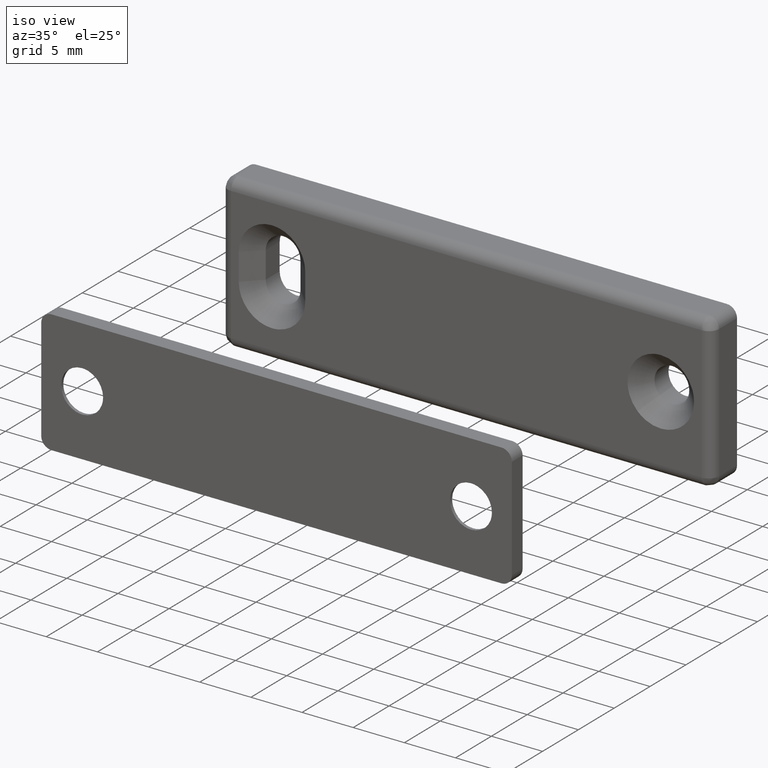
[diagram: clean part render]
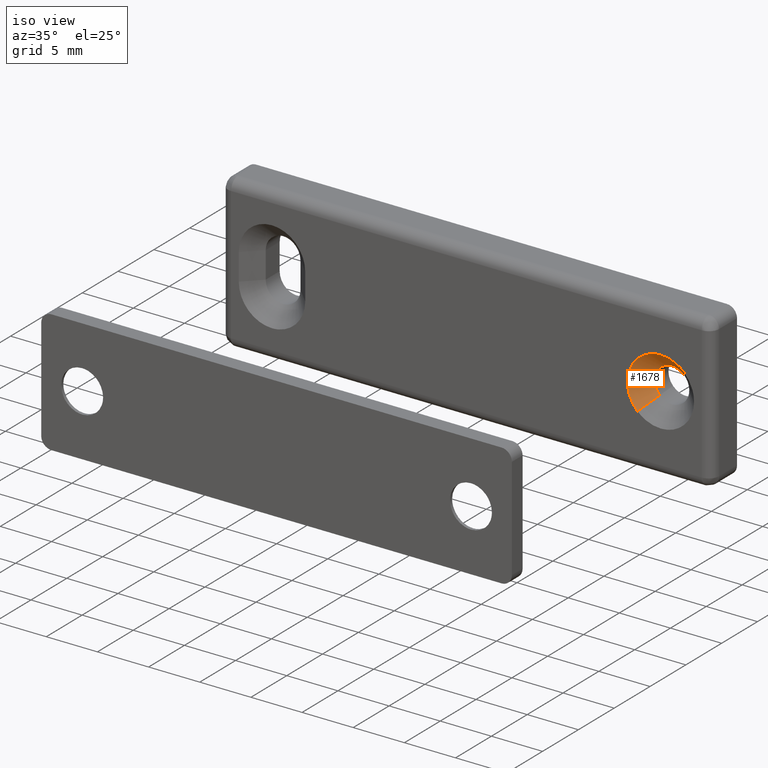
[diagram: same view with one face highlighted and labeled with its STEP entity id]
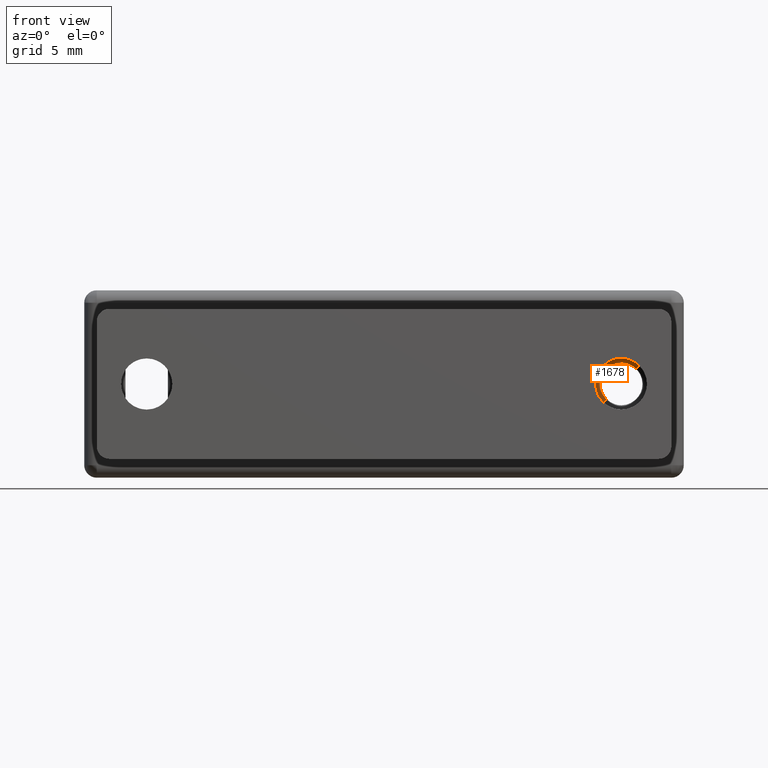
[diagram: same view with one face highlighted and labeled with its STEP entity id]
A machine part, iso view. The second image highlights one B-rep face of the part: STEP entity #1678.
A second angle (front view) of the same face is appended — the face is thin or edge-on in the first view.
In plain terms, the highlighted face is a freeform B-spline surface patch.
Its self-contained STEP definition (entity closure, byte-faithful):
#1125=CARTESIAN_POINT('',(20.191625384210219,-1.950397431334617,1.212606870274957));
#1126=VERTEX_POINT('',#1125);
#1180=CARTESIAN_POINT('',(17.808374615802091,-1.950397431332956,-1.212606870284725));
#1181=VERTEX_POINT('',#1180);
#1236=CARTESIAN_POINT('',(19.0,-1.950000000000000,1.700000000000000));
#1237=VERTEX_POINT('',#1236);
#1238=CARTESIAN_POINT('',(20.191625384210219,-1.950397431334617,1.212606870274957));
#1239=CARTESIAN_POINT('',(20.073934483716268,-1.950358179022374,1.328335702131426));
#1240=CARTESIAN_POINT('',(19.860625394077900,-1.950287036096666,1.484038008092722));
#1241=CARTESIAN_POINT('',(19.453826034365441,-1.950151360225220,1.656206667823381));
#1242=CARTESIAN_POINT('',(19.178821264907871,-1.950059640533776,1.700123373260366));
#1243=CARTESIAN_POINT('',(19.0,-1.950000000000000,1.700000000000000));
#1244=B_SPLINE_CURVE_WITH_KNOTS('',3,(#1238,#1239,#1240,#1241,#1242,#1243),.UNSPECIFIED.,.F.,.U.,(4,1,1,4),(0.000000014922600,0.495151720131164,0.783979732531206,1.320393842966357),.UNSPECIFIED.);
#1245=EDGE_CURVE('',#1126,#1237,#1244,.T.);
#1247=CARTESIAN_POINT('',(17.300000000000122,-1.950000000000000,-0.000000628986295));
#1248=VERTEX_POINT('',#1247);
#1249=CARTESIAN_POINT('',(19.0,-1.950000000000000,1.700000000000000));
#1250=CARTESIAN_POINT('',(18.784380820298260,-1.950000000000005,1.700226119827356));
#1251=CARTESIAN_POINT('',(18.485524207444008,-1.949999999999997,1.642335657364152));
#1252=CARTESIAN_POINT('',(18.109551514257241,-1.950000000000004,1.458772422559636));
#1253=CARTESIAN_POINT('',(17.804846407153789,-1.949999999999996,1.235787461105617));
#1254=CARTESIAN_POINT('',(17.539056226231342,-1.950000000000017,0.907810613047276));
#1255=CARTESIAN_POINT('',(17.346295710464691,-1.949999999999986,0.472826005209824));
#1256=CARTESIAN_POINT('',(17.299909626393301,-1.950000000000012,0.173859378856403));
#1257=CARTESIAN_POINT('',(17.300000000000122,-1.950000000000000,-0.000000628986295));
#1258=B_SPLINE_CURVE_WITH_KNOTS('',3,(#1249,#1250,#1251,#1252,#1253,#1254,#1255,#1256,#1257),.UNSPECIFIED.,.F.,.U.,(4,1,1,1,1,1,4),(0.000000067687782,0.646730316596451,0.897084674444398,1.251747876757325,1.773287836145344,2.148818398498073,2.670370865403462),.UNSPECIFIED.);
#1259=EDGE_CURVE('',#1237,#1248,#1258,.T.);
#1261=CARTESIAN_POINT('',(17.300000000000122,-1.950000000000000,-0.000000628986295));
#1262=CARTESIAN_POINT('',(17.299761074305259,-1.950071456412366,-0.218021952179249));
#1263=CARTESIAN_POINT('',(17.364419148406899,-1.950179715284390,-0.548331577690390));
#1264=CARTESIAN_POINT('',(17.574874641174691,-1.950310916799176,-0.948641659528354));
#1265=CARTESIAN_POINT('',(17.723108019371779,-1.950369972858014,-1.128828094031044));
#1266=CARTESIAN_POINT('',(17.808374615802091,-1.950397431332956,-1.212606870284725));
#1267=B_SPLINE_CURVE_WITH_KNOTS('',3,(#1261,#1262,#1263,#1264,#1265,#1266),.UNSPECIFIED.,.F.,.U.,(4,1,1,4),(0.000000019656690,0.653948649359144,0.991454190690374,1.350065458012676),.UNSPECIFIED.);
#1268=EDGE_CURVE('',#1248,#1181,#1267,.T.);
#1560=CARTESIAN_POINT('',(16.722045132165889,-3.499999885409844,-2.318063714230791));
#1561=VERTEX_POINT('',#1560);
#1587=CARTESIAN_POINT('',(21.277954867834111,-3.499999885409844,2.318063714230791));
#1588=VERTEX_POINT('',#1587);
#1599=CARTESIAN_POINT('',(20.191625384210219,-1.950397431334617,1.212606870274957));
#1600=CARTESIAN_POINT('',(21.277954867834111,-3.499999885409844,2.318063714230791));
#1601=QUASI_UNIFORM_CURVE('',1,(#1599,#1600),.UNSPECIFIED.,.F.,.U.);
#1602=EDGE_CURVE('',#1126,#1588,#1601,.T.);
#1607=CARTESIAN_POINT('',(17.808374615802091,-1.950397431332956,-1.212606870284725));
#1608=CARTESIAN_POINT('',(16.722045132165889,-3.499999885409844,-2.318063714230791));
#1609=QUASI_UNIFORM_CURVE('',1,(#1607,#1608),.UNSPECIFIED.,.F.,.U.);
#1610=EDGE_CURVE('',#1181,#1561,#1609,.T.);
#1615=CARTESIAN_POINT('',(20.164385515318131,-1.911250000000000,1.184887308657383));
#1616=CARTESIAN_POINT('',(18.979498206660743,-1.911250000000000,2.349272823975509));
#1617=CARTESIAN_POINT('',(17.815112691342620,-1.911250000000000,1.164385515318126));
#1618=CARTESIAN_POINT('',(16.650727176024489,-1.911250000000000,-0.020501793339257));
#1619=CARTESIAN_POINT('',(17.835614484681869,-1.911250000000000,-1.184887308657383));
#1620=CARTESIAN_POINT('',(21.305794348815969,-3.539718750000000,2.346393376028475));
#1621=CARTESIAN_POINT('',(18.959400972787488,-3.539718750000000,4.652187724844443));
#1622=CARTESIAN_POINT('',(16.653606623971520,-3.539718750000000,2.305794348815967));
#1623=CARTESIAN_POINT('',(14.347812275155555,-3.539718750000000,-0.040599027212508));
#1624=CARTESIAN_POINT('',(16.694205651184031,-3.539718750000000,-2.346393376028475));
#1632=(BOUNDED_SURFACE()B_SPLINE_SURFACE(2,1,((#1615,#1620),(#1616,#1621),(#1617,#1622),(#1618,#1623),(#1619,#1624)),.UNSPECIFIED.,.F.,.F.,.U.)B_SPLINE_SURFACE_WITH_KNOTS((3,2,3),(2,2),(0.0,5.450584490572368,10.901168981144741),(0.0,2.303002592150806),.UNSPECIFIED.)GEOMETRIC_REPRESENTATION_ITEM()RATIONAL_B_SPLINE_SURFACE(((1.0,1.0),(0.707106781186548,0.707106781186548),(1.0,1.0),(0.707106781186548,0.707106781186548),(1.0,1.0)))REPRESENTATION_ITEM('')SURFACE());
#1633=CARTESIAN_POINT('',(15.750000000000069,-3.500000000000000,0.000000918319435));
#1634=VERTEX_POINT('',#1633);
#1635=CARTESIAN_POINT('',(16.722045132165889,-3.499999885409844,-2.318063714230791));
#1636=CARTESIAN_POINT('',(16.578218298480461,-3.499999892395526,-2.176749124576165));
#1637=CARTESIAN_POINT('',(16.290846557868161,-3.499999909225158,-1.836299319055887));
#1638=CARTESIAN_POINT('',(15.988101069244680,-3.499999936859043,-1.277288829264403));
#1639=CARTESIAN_POINT('',(15.794138445606320,-3.499999968104648,-0.645215365969156));
#1640=CARTESIAN_POINT('',(15.749964312943300,-3.499999988703459,-0.228518839111796));
#1641=CARTESIAN_POINT('',(15.750000000000069,-3.500000000000000,0.000000918319435));
#1642=B_SPLINE_CURVE_WITH_KNOTS('',3,(#1635,#1636,#1637,#1638,#1639,#1640,#1641),.UNSPECIFIED.,.F.,.U.,(4,1,1,1,4),(0.000000013924424,0.604903971389104,1.330780698627967,1.895364904138721,2.580922968900898),.UNSPECIFIED.);
#1643=EDGE_CURVE('',#1561,#1634,#1642,.T.);
#1644=ORIENTED_EDGE('',*,*,#1643,.F.);
#1645=ORIENTED_EDGE('',*,*,#1610,.F.);
#1646=ORIENTED_EDGE('',*,*,#1268,.F.);
#1647=ORIENTED_EDGE('',*,*,#1259,.F.);
#1648=ORIENTED_EDGE('',*,*,#1245,.F.);
#1649=ORIENTED_EDGE('',*,*,#1602,.T.);
#1650=CARTESIAN_POINT('',(19.0,-3.500000000000000,3.250000000000055));
#1651=VERTEX_POINT('',#1650);
#1652=CARTESIAN_POINT('',(19.0,-3.500000000000000,3.250000000000055));
#1653=CARTESIAN_POINT('',(19.249795139332360,-3.499999987434322,3.250054138248825));
#1654=CARTESIAN_POINT('',(19.709904486457528,-3.499999964288986,3.196683844451140));
#1655=CARTESIAN_POINT('',(20.310200915956042,-3.499999934091701,2.992638732764803));
#1656=CARTESIAN_POINT('',(20.829958769577740,-3.499999907945834,2.706223799906747));
#1657=CARTESIAN_POINT('',(21.127941486296699,-3.499999892956101,2.465519295732408));
#1658=CARTESIAN_POINT('',(21.277954867834111,-3.499999885409844,2.318063714230791));
#1659=B_SPLINE_CURVE_WITH_KNOTS('',3,(#1652,#1653,#1654,#1655,#1656,#1657,#1658),.UNSPECIFIED.,.F.,.U.,(4,1,1,1,4),(0.000000014456100,0.749373076768860,1.380415732606327,1.893148342615452,2.524197785320951),.UNSPECIFIED.);
#1660=EDGE_CURVE('',#1651,#1588,#1659,.T.);
#1661=ORIENTED_EDGE('',*,*,#1660,.F.);
#1662=CARTESIAN_POINT('',(15.750000000000069,-3.500000000000000,0.000000918319435));
#1663=CARTESIAN_POINT('',(15.749970317067859,-3.500000000000004,0.212711480949538));
#1664=CARTESIAN_POINT('',(15.786693765384729,-3.499999999999990,0.584940418446896));
#1665=CARTESIAN_POINT('',(15.960834358445140,-3.500000000000020,1.214512263683359));
#1666=CARTESIAN_POINT('',(16.278048577463640,-3.499999999999943,1.835220395707377));
#1667=CARTESIAN_POINT('',(16.771155447907301,-3.500000000000108,2.399761407130436));
#1668=CARTESIAN_POINT('',(17.264748661285690,-3.499999999999857,2.765785455348072));
#1669=CARTESIAN_POINT('',(17.739358055438618,-3.500000000000122,3.008335745150132));
#1670=CARTESIAN_POINT('',(18.295420400143058,-3.499999999999878,3.195848079870305));
#1671=CARTESIAN_POINT('',(18.734103600577310,-3.500000000000065,3.250066303583522));
#1672=CARTESIAN_POINT('',(19.0,-3.500000000000000,3.250000000000055));
#1673=B_SPLINE_CURVE_WITH_KNOTS('',3,(#1662,#1663,#1664,#1665,#1666,#1667,#1668,#1669,#1670,#1671,#1672),.UNSPECIFIED.,.F.,.U.,(4,1,1,1,1,1,1,1,4),(0.000000049640552,0.638128485486353,1.116744074268146,1.954308369367458,2.712090603503747,3.350226631717204,3.788956189633561,4.307446115583605,5.105119576763237),.UNSPECIFIED.);
#1674=EDGE_CURVE('',#1634,#1651,#1673,.T.);
#1675=ORIENTED_EDGE('',*,*,#1674,.F.);
#1676=EDGE_LOOP('',(#1644,#1645,#1646,#1647,#1648,#1649,#1661,#1675));
#1677=FACE_OUTER_BOUND('',#1676,.T.);
#1678=ADVANCED_FACE('',(#1677),#1632,.F.);